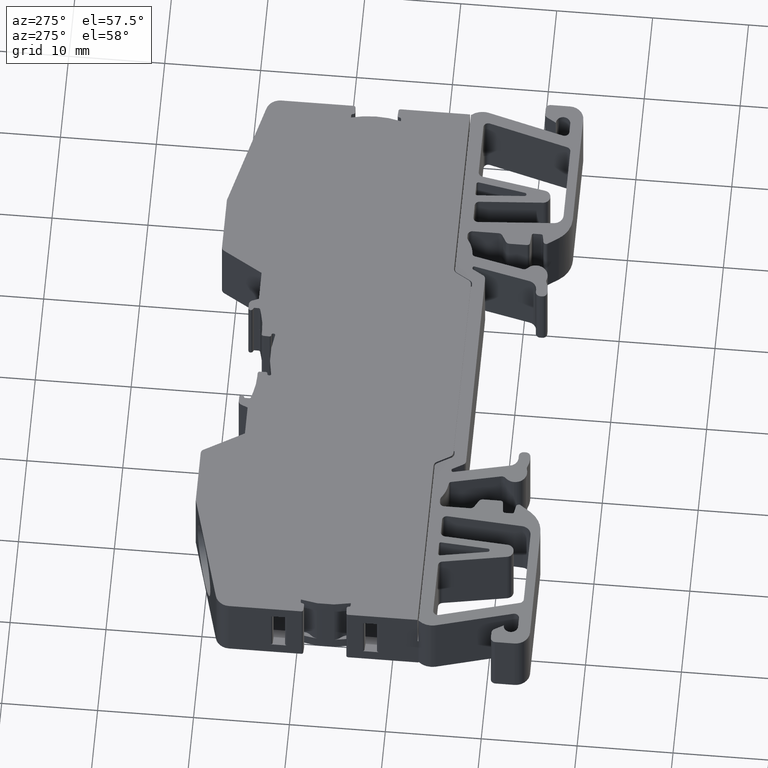
[diagram: clean part render]
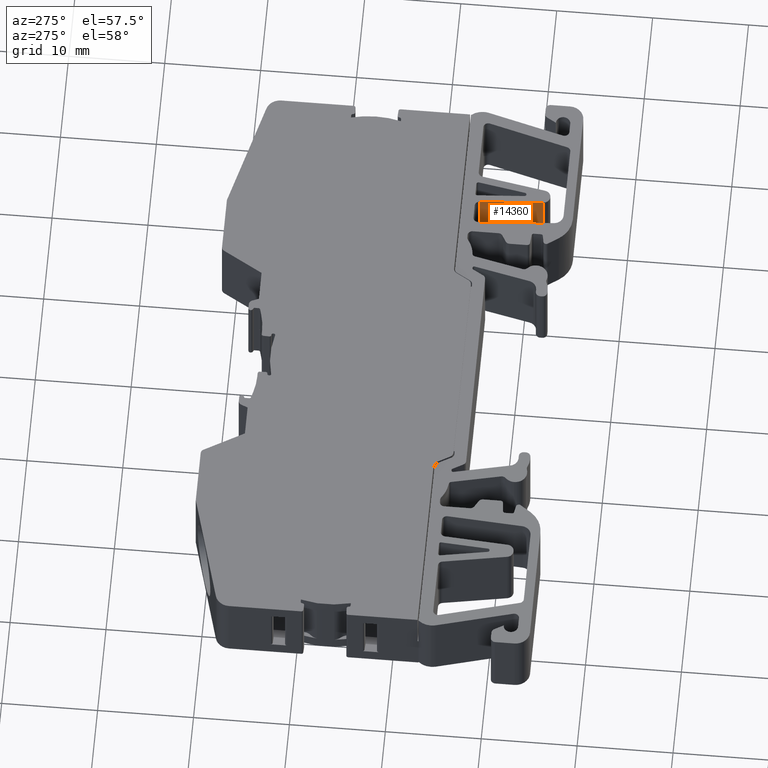
[diagram: same view with one face highlighted and labeled with its STEP entity id]
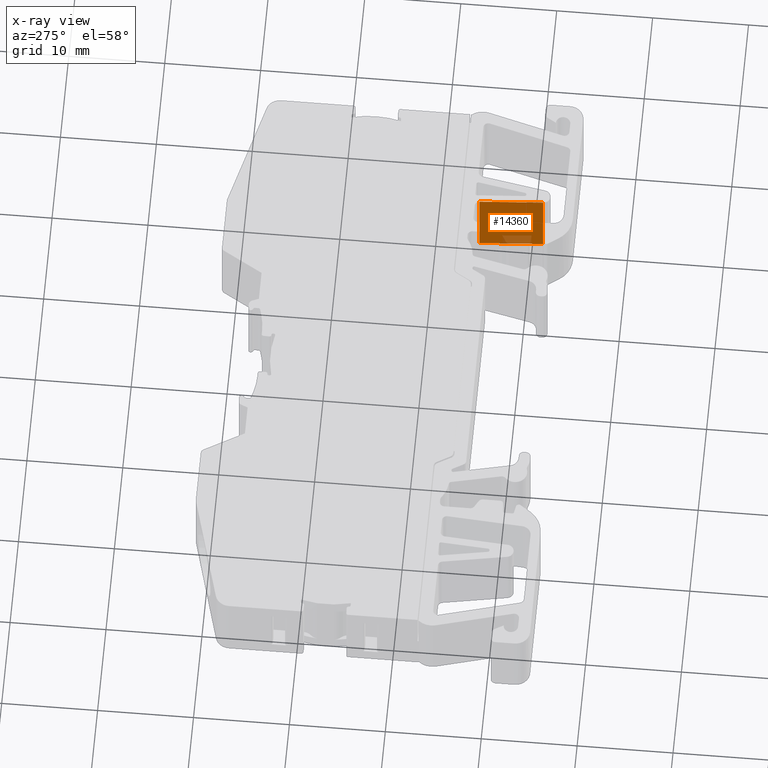
[diagram: x-ray of the same camera — body ghosted, the highlighted face saturated]
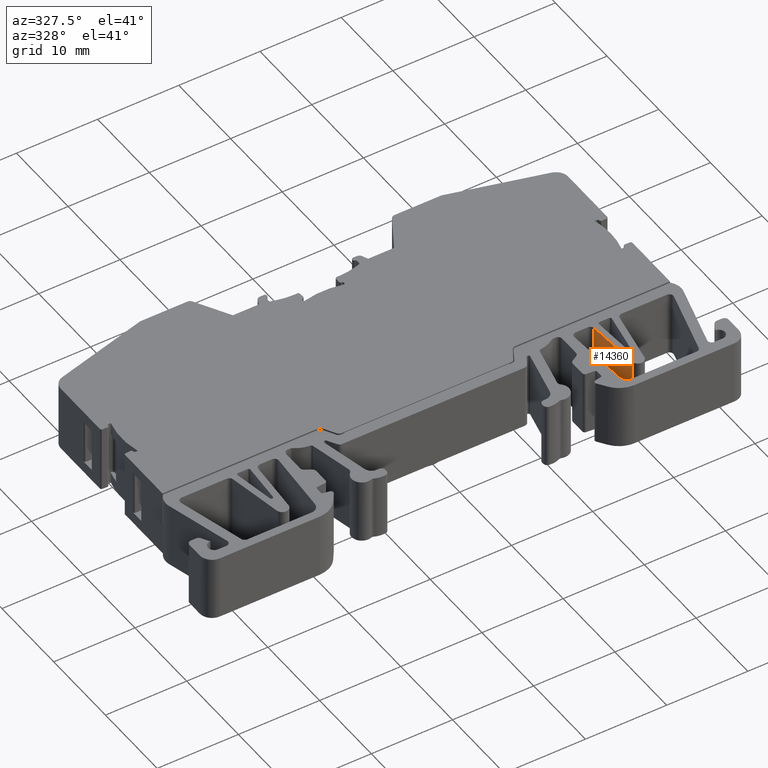
[diagram: same view with one face highlighted and labeled with its STEP entity id]
A machine part, auxiliary view. The second image highlights one B-rep face of the part: STEP entity #14360.
The next image is the same camera in x-ray: the body ghosted, the highlighted face saturated — about 9% of this face is hidden behind the body in this view.
A second angle (auxiliary view) of the same face is appended — the face is thin or edge-on in the first view.
In plain terms, the highlighted planar face has unit normal (-0.9976, -0.0694, 0).
Its self-contained STEP definition (entity closure, byte-faithful):
#3250 = EDGE_CURVE ( 'NONE', #11468, #11462, #5222, .T. ) ;
#3603 = EDGE_CURVE ( 'NONE', #10064, #11468, #6427, .T. ) ;
#3643 = EDGE_CURVE ( 'NONE', #11462, #13561, #9312, .T. ) ;
#3655 = EDGE_CURVE ( 'NONE', #10064, #13561, #9317, .T. ) ;
#4763 = FACE_OUTER_BOUND ( 'NONE', #16884, .T. ) ;
#4767 = DIRECTION ( 'NONE',  ( -0.9975858347221799900, -0.06944423922580920900, 0.0000000000000000000 ) ) ;
#4770 = PLANE ( 'NONE',  #10542 ) ;
#4791 = DIRECTION ( 'NONE',  ( 0.06944423922580919600, -0.9975858347221798800, 0.0000000000000000000 ) ) ;
#4809 = CARTESIAN_POINT ( 'NONE',  ( 203.8530102414484900, -49.79068063003689600, -12.60000000000000000 ) ) ;
#5222 = LINE ( 'NONE', #5226, #6748 ) ;
#5223 = DIRECTION ( 'NONE',  ( -0.0000000000000000000, -0.0000000000000000000, -1.000000000000000000 ) ) ;
#5226 = CARTESIAN_POINT ( 'NONE',  ( 200.0092168649480900, 5.426481610407949900, -12.60000000000000000 ) ) ;
#6427 = B_SPLINE_CURVE_WITH_KNOTS ( 'NONE', 3,
 ( #9137, #9122, #9162, #9141 ),
 .UNSPECIFIED., .F., .F.,
 ( 4, 4 ),
 ( 0.0000000000000000000, 1.000000000000000000 ),
 .UNSPECIFIED. ) ;
#6748 = VECTOR ( 'NONE', #5223, 1000.000000000000000 ) ;
#6972 = VECTOR ( 'NONE', #9306, 1000.000000000000000 ) ;
#7027 = VECTOR ( 'NONE', #9338, 1000.000000000000000 ) ;
#7685 = CARTESIAN_POINT ( 'NONE',  ( 200.4673944273787400, -1.155366663310166200, -20.60000000000000100 ) ) ;
#9122 = CARTESIAN_POINT ( 'NONE',  ( 200.3146685732350000, 1.038582761262548400, -12.60000000000000000 ) ) ;
#9137 = CARTESIAN_POINT ( 'NONE',  ( 200.4673944273786500, -1.155366663310163800, -12.60000000000000000 ) ) ;
#9141 = CARTESIAN_POINT ( 'NONE',  ( 200.0092168649481200, 5.426481610407948100, -12.60000000000000000 ) ) ;
#9142 = CARTESIAN_POINT ( 'NONE',  ( 200.0092168649481200, 5.426481610407947200, -20.60000000000000100 ) ) ;
#9162 = CARTESIAN_POINT ( 'NONE',  ( 200.1619427190915100, 3.232532185835247200, -12.60000000000000000 ) ) ;
#9297 = CARTESIAN_POINT ( 'NONE',  ( 200.4673944273788200, -1.155366663310157100, -12.60000000000000000 ) ) ;
#9306 = DIRECTION ( 'NONE',  ( 0.06944423922584275200, -0.9975858347221776600, 0.0000000000000000000 ) ) ;
#9312 = LINE ( 'NONE', #9313, #6972 ) ;
#9313 = CARTESIAN_POINT ( 'NONE',  ( 200.0092168649480900, 5.426481610407943600, -20.60000000000000100 ) ) ;
#9317 = LINE ( 'NONE', #9297, #7027 ) ;
#9338 = DIRECTION ( 'NONE',  ( 0.0000000000000000000, 0.0000000000000000000, -1.000000000000000000 ) ) ;
#9394 = CARTESIAN_POINT ( 'NONE',  ( 200.4673944273786500, -1.155366663310163800, -12.60000000000000000 ) ) ;
#10064 = VERTEX_POINT ( 'NONE', #9394 ) ;
#10542 = AXIS2_PLACEMENT_3D ( 'NONE', #4809, #4767, #4791 ) ;
#11462 = VERTEX_POINT ( 'NONE', #9142 ) ;
#11468 = VERTEX_POINT ( 'NONE', #17547 ) ;
#13532 = ORIENTED_EDGE ( 'NONE', *, *, #3655, .F. ) ;
#13534 = ORIENTED_EDGE ( 'NONE', *, *, #3603, .T. ) ;
#13553 = ORIENTED_EDGE ( 'NONE', *, *, #3643, .T. ) ;
#13556 = ORIENTED_EDGE ( 'NONE', *, *, #3250, .T. ) ;
#13561 = VERTEX_POINT ( 'NONE', #7685 ) ;
#14360 = ADVANCED_FACE ( 'NONE', ( #4763 ), #4770, .T. ) ;
#16884 = EDGE_LOOP ( 'NONE', ( #13553, #13532, #13534, #13556 ) ) ;
#17547 = CARTESIAN_POINT ( 'NONE',  ( 200.0092168649481200, 5.426481610407948100, -12.60000000000000000 ) ) ;